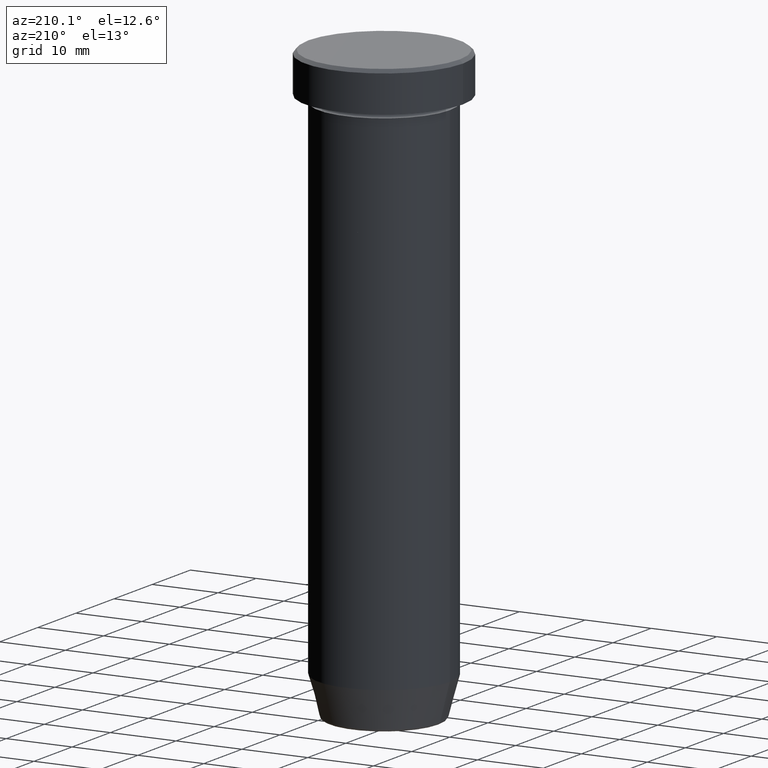
[diagram: clean part render]
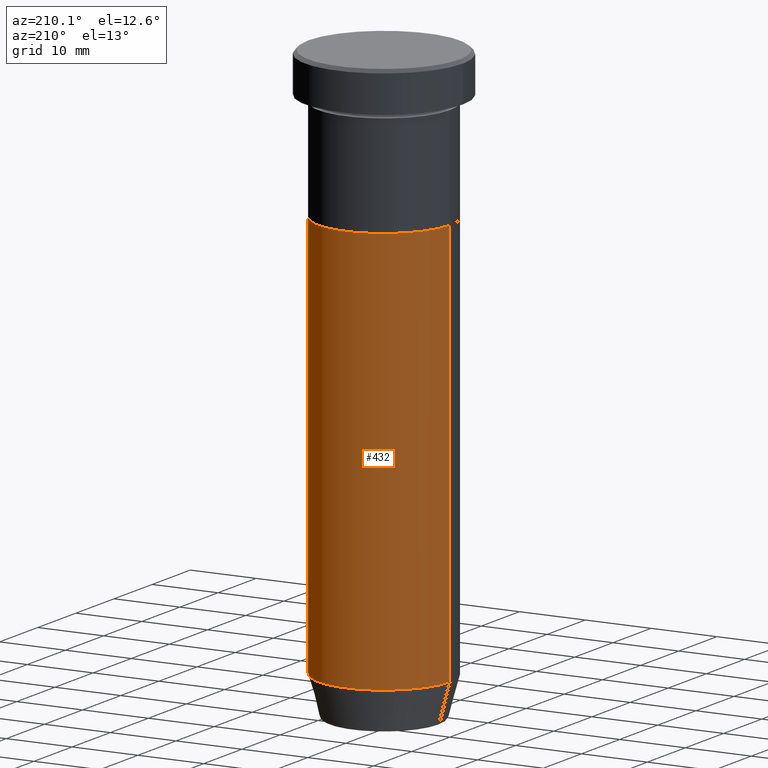
[diagram: same view with one face highlighted and labeled with its STEP entity id]
A machine part, auxiliary view. The second image highlights one B-rep face of the part: STEP entity #432.
In plain terms, the highlighted cylindrical surface (partial cylindrical patch) has radius 10 mm, axis along (-0, -0, 1).
Its self-contained STEP definition (entity closure, byte-faithful):
#3 = EDGE_LOOP ( 'NONE', ( #506, #186, #483, #107 ) ) ;
#19 = CARTESIAN_POINT ( 'NONE',  ( 10.00000000000000000, 0.000000000000000000, -22.50000000000000000 ) ) ;
#29 = FACE_OUTER_BOUND ( 'NONE', #3, .T. ) ;
#30 = VECTOR ( 'NONE', #349, 1000.000000000000000 ) ;
#56 = EDGE_CURVE ( 'NONE', #443, #457, #366, .T. ) ;
#59 = DIRECTION ( 'NONE',  ( -0.000000000000000000, -0.000000000000000000, 1.000000000000000000 ) ) ;
#60 = VECTOR ( 'NONE', #150, 1000.000000000000000 ) ;
#62 = CARTESIAN_POINT ( 'NONE',  ( 0.000000000000000000, 0.000000000000000000, 0.000000000000000000 ) ) ;
#107 = ORIENTED_EDGE ( 'NONE', *, *, #298, .F. ) ;
#113 = DIRECTION ( 'NONE',  ( 1.000000000000000000, 0.000000000000000000, 0.000000000000000000 ) ) ;
#150 = DIRECTION ( 'NONE',  ( -0.000000000000000000, -0.000000000000000000, 1.000000000000000000 ) ) ;
#175 = EDGE_CURVE ( 'NONE', #503, #457, #210, .T. ) ;
#186 = ORIENTED_EDGE ( 'NONE', *, *, #175, .T. ) ;
#187 = LINE ( 'NONE', #429, #60 ) ;
#195 = DIRECTION ( 'NONE',  ( 1.000000000000000000, 0.000000000000000000, 0.000000000000000000 ) ) ;
#203 = CARTESIAN_POINT ( 'NONE',  ( -9.999999999999998224, 1.224646799147353059E-15, 0.000000000000000000 ) ) ;
#208 = VERTEX_POINT ( 'NONE', #380 ) ;
#210 = LINE ( 'NONE', #203, #30 ) ;
#211 = DIRECTION ( 'NONE',  ( -0.000000000000000000, -0.000000000000000000, 1.000000000000000000 ) ) ;
#281 = CARTESIAN_POINT ( 'NONE',  ( 0.000000000000000000, 0.000000000000000000, -22.50000000000000000 ) ) ;
#283 = CARTESIAN_POINT ( 'NONE',  ( 0.000000000000000000, 0.000000000000000000, -83.99999999999998579 ) ) ;
#298 = EDGE_CURVE ( 'NONE', #208, #443, #187, .T. ) ;
#311 = EDGE_CURVE ( 'NONE', #208, #503, #448, .T. ) ;
#313 = AXIS2_PLACEMENT_3D ( 'NONE', #281, #462, #599 ) ;
#349 = DIRECTION ( 'NONE',  ( -0.000000000000000000, -0.000000000000000000, 1.000000000000000000 ) ) ;
#358 = CARTESIAN_POINT ( 'NONE',  ( -9.999999999999998224, 1.224646799147353059E-15, -83.99999999999998579 ) ) ;
#366 = CIRCLE ( 'NONE', #313, 10.00000000000000000 ) ;
#380 = CARTESIAN_POINT ( 'NONE',  ( 9.999999999999998224, 0.000000000000000000, -83.99999999999998579 ) ) ;
#427 = AXIS2_PLACEMENT_3D ( 'NONE', #62, #211, #113 ) ;
#429 = CARTESIAN_POINT ( 'NONE',  ( 9.999999999999998224, 0.000000000000000000, 0.000000000000000000 ) ) ;
#432 = ADVANCED_FACE ( 'NONE', ( #29 ), #535, .T. ) ;
#442 = CARTESIAN_POINT ( 'NONE',  ( -10.00000000000000000, 1.224646799147353256E-15, -22.50000000000000000 ) ) ;
#443 = VERTEX_POINT ( 'NONE', #19 ) ;
#448 = CIRCLE ( 'NONE', #526, 9.999999999999998224 ) ;
#457 = VERTEX_POINT ( 'NONE', #442 ) ;
#462 = DIRECTION ( 'NONE',  ( -0.000000000000000000, -0.000000000000000000, 1.000000000000000000 ) ) ;
#483 = ORIENTED_EDGE ( 'NONE', *, *, #56, .F. ) ;
#503 = VERTEX_POINT ( 'NONE', #358 ) ;
#506 = ORIENTED_EDGE ( 'NONE', *, *, #311, .T. ) ;
#526 = AXIS2_PLACEMENT_3D ( 'NONE', #283, #59, #195 ) ;
#535 = CYLINDRICAL_SURFACE ( 'NONE', #427, 9.999999999999998224 ) ;
#599 = DIRECTION ( 'NONE',  ( 1.000000000000000000, 0.000000000000000000, 0.000000000000000000 ) ) ;